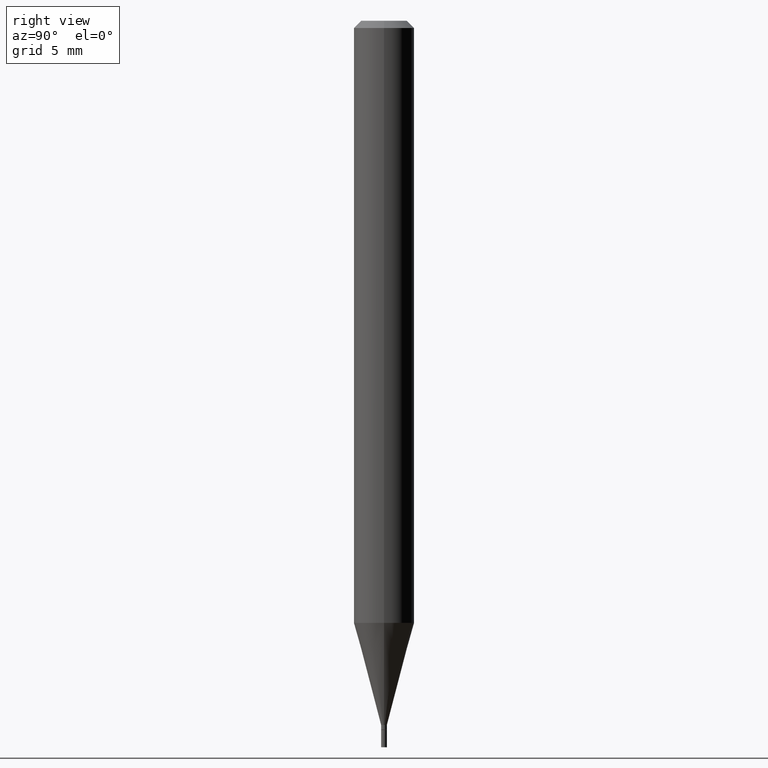
[diagram: clean part render]
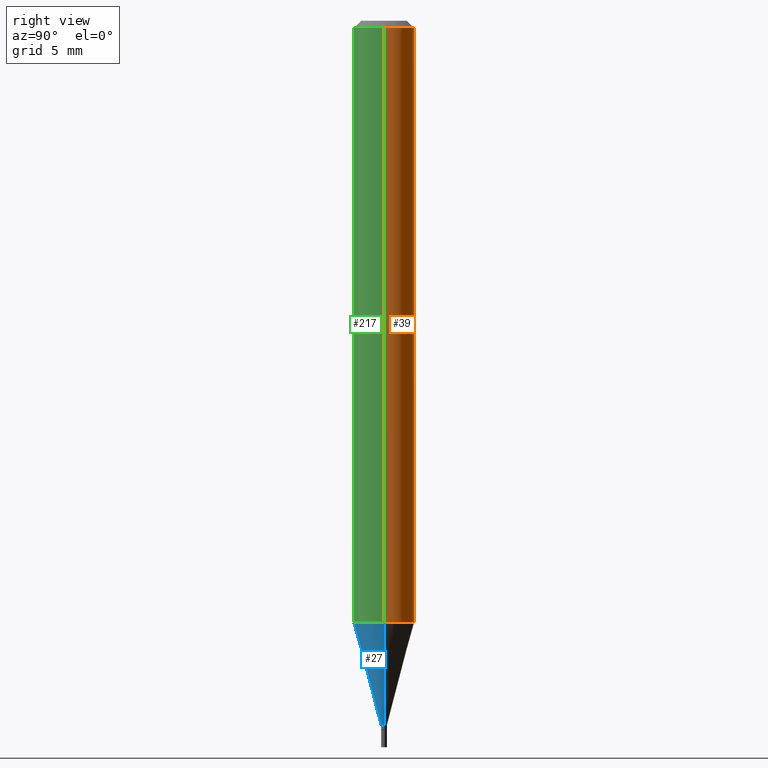
[diagram: same view with three faces highlighted in distinct colors, each labeled with its STEP entity id]
A machine part, right view with three faces highlighted in distinct colors.
Their STEP definitions:

[orange] entity #39 — the highlighted cylindrical surface (edge-blend (fillet) strip) has radius 1.5875 mm, axis along (-0, 0, 1).
#35 = AXIS2_PLACEMENT_3D ( 'NONE', #253, #397, #76 ) ;
#39 = ADVANCED_FACE ( 'NONE', ( #145 ), #110, .T. ) ;
#40 = VERTEX_POINT ( 'NONE', #215 ) ;
#46 = DIRECTION ( 'NONE',  ( -2.445468806185136597E-29, 3.491481338843145583E-15, 1.000000000000000000 ) ) ;
#54 = DIRECTION ( 'NONE',  ( -2.445468806185136597E-29, 3.491481338843145583E-15, 1.000000000000000000 ) ) ;
#73 = VECTOR ( 'NONE', #130, 39.37007874015748143 ) ;
#76 = DIRECTION ( 'NONE',  ( 1.000000000000000000, -6.982962677686266711E-15, 4.876176775795935793E-29 ) ) ;
#82 = CIRCLE ( 'NONE', #396, 0.06250000000000000000 ) ;
#87 = ORIENTED_EDGE ( 'NONE', *, *, #426, .T. ) ;
#110 = CYLINDRICAL_SURFACE ( 'NONE', #35, 0.06250000000000000000 ) ;
#115 = LINE ( 'NONE', #342, #337 ) ;
#122 = LINE ( 'NONE', #308, #73 ) ;
#126 = EDGE_LOOP ( 'NONE', ( #234, #87, #309, #258 ) ) ;
#130 = DIRECTION ( 'NONE',  ( -2.445468806185136877E-29, 3.491481338843145188E-15, 1.000000000000000000 ) ) ;
#133 = EDGE_CURVE ( 'NONE', #398, #40, #122, .T. ) ;
#145 = FACE_OUTER_BOUND ( 'NONE', #126, .T. ) ;
#181 = CARTESIAN_POINT ( 'NONE',  ( 3.668203209277705088E-31, -5.237222008264718399E-17, -0.01499999999999999944 ) ) ;
#194 = DIRECTION ( 'NONE',  ( 1.000000000000000000, -6.982962677686270655E-15, 0.000000000000000000 ) ) ;
#197 = CARTESIAN_POINT ( 'NONE',  ( -0.06250000000000000000, -1.752295436085913706E-15, -0.01499999999999999944 ) ) ;
#215 = CARTESIAN_POINT ( 'NONE',  ( 0.06250000000000000000, -4.888073874380388472E-16, -0.01499999999999999944 ) ) ;
#223 = CARTESIAN_POINT ( 'NONE',  ( -0.06250000000000000000, -3.896307861939242555E-15, -1.243139129372358598 ) ) ;
#234 = ORIENTED_EDGE ( 'NONE', *, *, #411, .T. ) ;
#253 = CARTESIAN_POINT ( 'NONE',  ( 0.000000000000000000, 0.000000000000000000, 0.000000000000000000 ) ) ;
#258 = ORIENTED_EDGE ( 'NONE', *, *, #133, .F. ) ;
#284 = AXIS2_PLACEMENT_3D ( 'NONE', #181, #54, #416 ) ;
#302 = CARTESIAN_POINT ( 'NONE',  ( 3.040057962628251805E-29, -4.340397071789305171E-15, -1.243139129372358598 ) ) ;
#308 = CARTESIAN_POINT ( 'NONE',  ( 0.06250000000000000000, -4.364351673553916694E-16, 3.047610484872459871E-30 ) ) ;
#309 = ORIENTED_EDGE ( 'NONE', *, *, #400, .F. ) ;
#337 = VECTOR ( 'NONE', #339, 39.37007874015748143 ) ;
#339 = DIRECTION ( 'NONE',  ( -2.445468806185136877E-29, 3.491481338843145188E-15, 1.000000000000000000 ) ) ;
#342 = CARTESIAN_POINT ( 'NONE',  ( -0.06250000000000000000, 4.440892098500626162E-16, -3.074334431409316114E-30 ) ) ;
#344 = VERTEX_POINT ( 'NONE', #223 ) ;
#394 = CARTESIAN_POINT ( 'NONE',  ( 0.06250000000000000000, -4.776832239144696052E-15, -1.243139129372358598 ) ) ;
#396 = AXIS2_PLACEMENT_3D ( 'NONE', #302, #46, #194 ) ;
#397 = DIRECTION ( 'NONE',  ( -2.445468806185136597E-29, 3.491481338843145583E-15, 1.000000000000000000 ) ) ;
#398 = VERTEX_POINT ( 'NONE', #394 ) ;
#400 = EDGE_CURVE ( 'NONE', #40, #451, #452, .T. ) ;
#411 = EDGE_CURVE ( 'NONE', #398, #344, #82, .T. ) ;
#416 = DIRECTION ( 'NONE',  ( 1.000000000000000000, -6.982962677686266711E-15, 0.000000000000000000 ) ) ;
#426 = EDGE_CURVE ( 'NONE', #344, #451, #115, .T. ) ;
#451 = VERTEX_POINT ( 'NONE', #197 ) ;
#452 = CIRCLE ( 'NONE', #284, 0.06250000000000000000 ) ;

[blue] entity #27 — the highlighted conical surface has half-angle 15 deg.
#1 = DIRECTION ( 'NONE',  ( -2.445468806185136597E-29, 3.491481338843145583E-15, 1.000000000000000000 ) ) ;
#15 = CARTESIAN_POINT ( 'NONE',  ( -0.005999999999999919460, -4.465144582235785416E-15, -1.454000000000000181 ) ) ;
#27 = ADVANCED_FACE ( 'NONE', ( #372 ), #163, .T. ) ;
#36 = AXIS2_PLACEMENT_3D ( 'NONE', #369, #259, #43 ) ;
#43 = DIRECTION ( 'NONE',  ( 1.000000000000000000, -6.982962677686270655E-15, 0.000000000000000000 ) ) ;
#52 = LINE ( 'NONE', #94, #135 ) ;
#91 = VECTOR ( 'NONE', #281, 39.37007874015748854 ) ;
#92 = EDGE_CURVE ( 'NONE', #132, #344, #52, .T. ) ;
#94 = CARTESIAN_POINT ( 'NONE',  ( -0.005999999999999919460, -5.033981302532329066E-15, -1.454000000000000181 ) ) ;
#113 = ORIENTED_EDGE ( 'NONE', *, *, #92, .F. ) ;
#132 = VERTEX_POINT ( 'NONE', #15 ) ;
#135 = VECTOR ( 'NONE', #200, 39.37007874015748854 ) ;
#144 = CARTESIAN_POINT ( 'NONE',  ( 0.005999999999999919460, -5.118511642744051201E-15, -1.454000000000000181 ) ) ;
#163 = CONICAL_SURFACE ( 'NONE', #444, 0.005999999999999919460, 0.2617993877991499629 ) ;
#196 = ORIENTED_EDGE ( 'NONE', *, *, #360, .T. ) ;
#200 = DIRECTION ( 'NONE',  ( -0.2588190451025212391, 5.211531920934549464E-15, 0.9659258262890679791 ) ) ;
#207 = AXIS2_PLACEMENT_3D ( 'NONE', #290, #334, #363 ) ;
#221 = CIRCLE ( 'NONE', #207, 0.005999999999999919460 ) ;
#223 = CARTESIAN_POINT ( 'NONE',  ( -0.06250000000000000000, -3.896307861939242555E-15, -1.243139129372358598 ) ) ;
#231 = ORIENTED_EDGE ( 'NONE', *, *, #446, .F. ) ;
#259 = DIRECTION ( 'NONE',  ( -2.445468806185136597E-29, 3.491481338843145583E-15, 1.000000000000000000 ) ) ;
#273 = EDGE_CURVE ( 'NONE', #456, #398, #427, .T. ) ;
#281 = DIRECTION ( 'NONE',  ( 0.2588190451025212391, 1.565188264969622362E-15, 0.9659258262890679791 ) ) ;
#289 = EDGE_LOOP ( 'NONE', ( #113, #196, #312, #231 ) ) ;
#290 = CARTESIAN_POINT ( 'NONE',  ( 3.555711644193189020E-29, -5.076613866677933538E-15, -1.454000000000000181 ) ) ;
#298 = CIRCLE ( 'NONE', #36, 0.06250000000000000000 ) ;
#312 = ORIENTED_EDGE ( 'NONE', *, *, #273, .T. ) ;
#325 = DIRECTION ( 'NONE',  ( 1.000000000000000000, -6.982962677686265133E-15, 0.000000000000000000 ) ) ;
#334 = DIRECTION ( 'NONE',  ( -2.445468806185136597E-29, 3.491481338843145583E-15, 1.000000000000000000 ) ) ;
#344 = VERTEX_POINT ( 'NONE', #223 ) ;
#360 = EDGE_CURVE ( 'NONE', #132, #456, #221, .T. ) ;
#363 = DIRECTION ( 'NONE',  ( 1.000000000000000000, -6.982962677686265133E-15, 0.000000000000000000 ) ) ;
#369 = CARTESIAN_POINT ( 'NONE',  ( 3.040057962628251805E-29, -4.340397071789305171E-15, -1.243139129372358598 ) ) ;
#372 = FACE_OUTER_BOUND ( 'NONE', #289, .T. ) ;
#394 = CARTESIAN_POINT ( 'NONE',  ( 0.06250000000000000000, -4.776832239144696052E-15, -1.243139129372358598 ) ) ;
#398 = VERTEX_POINT ( 'NONE', #394 ) ;
#427 = LINE ( 'NONE', #144, #91 ) ;
#437 = CARTESIAN_POINT ( 'NONE',  ( 3.555711644193189020E-29, -5.076613866677933538E-15, -1.454000000000000181 ) ) ;
#442 = CARTESIAN_POINT ( 'NONE',  ( 0.005999999999999919460, -5.118511642744051201E-15, -1.454000000000000181 ) ) ;
#444 = AXIS2_PLACEMENT_3D ( 'NONE', #437, #1, #325 ) ;
#446 = EDGE_CURVE ( 'NONE', #344, #398, #298, .T. ) ;
#456 = VERTEX_POINT ( 'NONE', #442 ) ;

[green] entity #217 — the highlighted cylindrical surface (edge-blend (fillet) strip) has radius 1.5875 mm, axis along (-0, 0, 1).
#36 = AXIS2_PLACEMENT_3D ( 'NONE', #369, #259, #43 ) ;
#40 = VERTEX_POINT ( 'NONE', #215 ) ;
#43 = DIRECTION ( 'NONE',  ( 1.000000000000000000, -6.982962677686270655E-15, 0.000000000000000000 ) ) ;
#58 = CARTESIAN_POINT ( 'NONE',  ( 3.668203209277705088E-31, -5.237222008264718399E-17, -0.01499999999999999944 ) ) ;
#59 = ORIENTED_EDGE ( 'NONE', *, *, #426, .F. ) ;
#68 = DIRECTION ( 'NONE',  ( 1.000000000000000000, -6.982962677686266711E-15, 4.876176775795935793E-29 ) ) ;
#73 = VECTOR ( 'NONE', #130, 39.37007874015748143 ) ;
#74 = CYLINDRICAL_SURFACE ( 'NONE', #140, 0.06250000000000000000 ) ;
#89 = DIRECTION ( 'NONE',  ( -2.445468806185136597E-29, 3.491481338843145583E-15, 1.000000000000000000 ) ) ;
#98 = ORIENTED_EDGE ( 'NONE', *, *, #179, .F. ) ;
#115 = LINE ( 'NONE', #342, #337 ) ;
#122 = LINE ( 'NONE', #308, #73 ) ;
#130 = DIRECTION ( 'NONE',  ( -2.445468806185136877E-29, 3.491481338843145188E-15, 1.000000000000000000 ) ) ;
#133 = EDGE_CURVE ( 'NONE', #398, #40, #122, .T. ) ;
#140 = AXIS2_PLACEMENT_3D ( 'NONE', #465, #318, #68 ) ;
#179 = EDGE_CURVE ( 'NONE', #451, #40, #320, .T. ) ;
#197 = CARTESIAN_POINT ( 'NONE',  ( -0.06250000000000000000, -1.752295436085913706E-15, -0.01499999999999999944 ) ) ;
#215 = CARTESIAN_POINT ( 'NONE',  ( 0.06250000000000000000, -4.888073874380388472E-16, -0.01499999999999999944 ) ) ;
#217 = ADVANCED_FACE ( 'NONE', ( #286 ), #74, .T. ) ;
#223 = CARTESIAN_POINT ( 'NONE',  ( -0.06250000000000000000, -3.896307861939242555E-15, -1.243139129372358598 ) ) ;
#229 = DIRECTION ( 'NONE',  ( 1.000000000000000000, -6.982962677686266711E-15, 0.000000000000000000 ) ) ;
#259 = DIRECTION ( 'NONE',  ( -2.445468806185136597E-29, 3.491481338843145583E-15, 1.000000000000000000 ) ) ;
#280 = ORIENTED_EDGE ( 'NONE', *, *, #446, .T. ) ;
#286 = FACE_OUTER_BOUND ( 'NONE', #350, .T. ) ;
#298 = CIRCLE ( 'NONE', #36, 0.06250000000000000000 ) ;
#308 = CARTESIAN_POINT ( 'NONE',  ( 0.06250000000000000000, -4.364351673553916694E-16, 3.047610484872459871E-30 ) ) ;
#318 = DIRECTION ( 'NONE',  ( -2.445468806185136597E-29, 3.491481338843145583E-15, 1.000000000000000000 ) ) ;
#320 = CIRCLE ( 'NONE', #347, 0.06250000000000000000 ) ;
#337 = VECTOR ( 'NONE', #339, 39.37007874015748143 ) ;
#339 = DIRECTION ( 'NONE',  ( -2.445468806185136877E-29, 3.491481338843145188E-15, 1.000000000000000000 ) ) ;
#342 = CARTESIAN_POINT ( 'NONE',  ( -0.06250000000000000000, 4.440892098500626162E-16, -3.074334431409316114E-30 ) ) ;
#344 = VERTEX_POINT ( 'NONE', #223 ) ;
#347 = AXIS2_PLACEMENT_3D ( 'NONE', #58, #89, #229 ) ;
#350 = EDGE_LOOP ( 'NONE', ( #59, #280, #454, #98 ) ) ;
#369 = CARTESIAN_POINT ( 'NONE',  ( 3.040057962628251805E-29, -4.340397071789305171E-15, -1.243139129372358598 ) ) ;
#394 = CARTESIAN_POINT ( 'NONE',  ( 0.06250000000000000000, -4.776832239144696052E-15, -1.243139129372358598 ) ) ;
#398 = VERTEX_POINT ( 'NONE', #394 ) ;
#426 = EDGE_CURVE ( 'NONE', #344, #451, #115, .T. ) ;
#446 = EDGE_CURVE ( 'NONE', #344, #398, #298, .T. ) ;
#451 = VERTEX_POINT ( 'NONE', #197 ) ;
#454 = ORIENTED_EDGE ( 'NONE', *, *, #133, .T. ) ;
#465 = CARTESIAN_POINT ( 'NONE',  ( 0.000000000000000000, 0.000000000000000000, 0.000000000000000000 ) ) ;